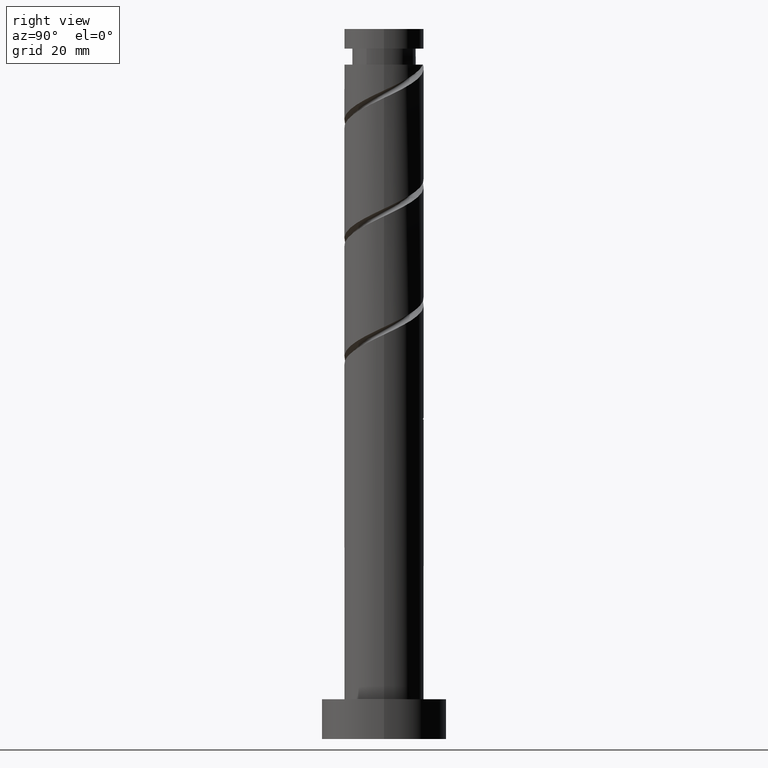
[diagram: clean part render]
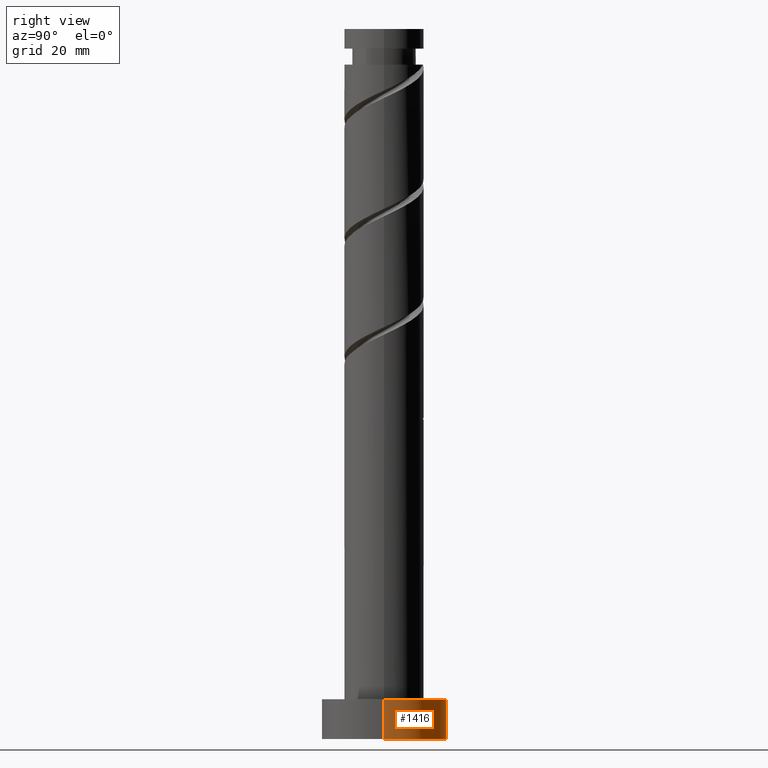
[diagram: same view with one face highlighted and labeled with its STEP entity id]
A machine part, right view. The second image highlights one B-rep face of the part: STEP entity #1416.
In plain terms, the highlighted cylindrical surface (partial cylindrical patch) has radius 11 mm, axis along (-0, -0, -1).
Its self-contained STEP definition (entity closure, byte-faithful):
#44 = CARTESIAN_POINT ( 'NONE',  ( -11.00000000000000000, 0.000000000000000000, 0.000000000000000000 ) ) ;
#91 = AXIS2_PLACEMENT_3D ( 'NONE', #410, #1396, #285 ) ;
#98 = CARTESIAN_POINT ( 'NONE',  ( 0.000000000000000000, 0.000000000000000000, 0.000000000000000000 ) ) ;
#112 = LINE ( 'NONE', #468, #119 ) ;
#119 = VECTOR ( 'NONE', #1516, 1000.000000000000000 ) ;
#203 = DIRECTION ( 'NONE',  ( 1.000000000000000000, 0.000000000000000000, 0.000000000000000000 ) ) ;
#229 = EDGE_CURVE ( 'NONE', #1121, #967, #611, .T. ) ;
#285 = DIRECTION ( 'NONE',  ( -1.000000000000000000, 0.000000000000000000, 0.000000000000000000 ) ) ;
#339 = CARTESIAN_POINT ( 'NONE',  ( 0.000000000000000000, 0.000000000000000000, 7.000000000000000000 ) ) ;
#350 = AXIS2_PLACEMENT_3D ( 'NONE', #98, #1436, #203 ) ;
#410 = CARTESIAN_POINT ( 'NONE',  ( 0.000000000000000000, 0.000000000000000000, 7.000000000000000000 ) ) ;
#468 = CARTESIAN_POINT ( 'NONE',  ( -11.00000000000000000, 0.000000000000000000, 7.000000000000000000 ) ) ;
#510 = VERTEX_POINT ( 'NONE', #44 ) ;
#542 = FACE_OUTER_BOUND ( 'NONE', #1369, .T. ) ;
#561 = EDGE_CURVE ( 'NONE', #1361, #510, #1564, .T. ) ;
#564 = AXIS2_PLACEMENT_3D ( 'NONE', #339, #595, #821 ) ;
#595 = DIRECTION ( 'NONE',  ( 0.000000000000000000, 0.000000000000000000, 1.000000000000000000 ) ) ;
#611 = CIRCLE ( 'NONE', #564, 11.00000000000000000 ) ;
#629 = LINE ( 'NONE', #1573, #1237 ) ;
#719 = EDGE_CURVE ( 'NONE', #1121, #1361, #629, .T. ) ;
#821 = DIRECTION ( 'NONE',  ( 1.000000000000000000, 0.000000000000000000, 0.000000000000000000 ) ) ;
#835 = CARTESIAN_POINT ( 'NONE',  ( -11.00000000000000000, 0.000000000000000000, 7.000000000000000000 ) ) ;
#853 = ORIENTED_EDGE ( 'NONE', *, *, #561, .T. ) ;
#875 = ORIENTED_EDGE ( 'NONE', *, *, #719, .T. ) ;
#953 = ORIENTED_EDGE ( 'NONE', *, *, #1047, .F. ) ;
#967 = VERTEX_POINT ( 'NONE', #835 ) ;
#974 = DIRECTION ( 'NONE',  ( -0.000000000000000000, -0.000000000000000000, -1.000000000000000000 ) ) ;
#988 = CARTESIAN_POINT ( 'NONE',  ( 11.00000000000000000, 1.347111479062088405E-15, 0.000000000000000000 ) ) ;
#1047 = EDGE_CURVE ( 'NONE', #967, #510, #112, .T. ) ;
#1121 = VERTEX_POINT ( 'NONE', #1538 ) ;
#1237 = VECTOR ( 'NONE', #974, 1000.000000000000000 ) ;
#1361 = VERTEX_POINT ( 'NONE', #988 ) ;
#1369 = EDGE_LOOP ( 'NONE', ( #1450, #875, #853, #953 ) ) ;
#1375 = CYLINDRICAL_SURFACE ( 'NONE', #91, 11.00000000000000000 ) ;
#1396 = DIRECTION ( 'NONE',  ( -0.000000000000000000, -0.000000000000000000, -1.000000000000000000 ) ) ;
#1416 = ADVANCED_FACE ( 'NONE', ( #542 ), #1375, .T. ) ;
#1436 = DIRECTION ( 'NONE',  ( 0.000000000000000000, 0.000000000000000000, 1.000000000000000000 ) ) ;
#1450 = ORIENTED_EDGE ( 'NONE', *, *, #229, .F. ) ;
#1516 = DIRECTION ( 'NONE',  ( -0.000000000000000000, -0.000000000000000000, -1.000000000000000000 ) ) ;
#1538 = CARTESIAN_POINT ( 'NONE',  ( 11.00000000000000000, 1.347111479062088405E-15, 7.000000000000000000 ) ) ;
#1564 = CIRCLE ( 'NONE', #350, 11.00000000000000000 ) ;
#1573 = CARTESIAN_POINT ( 'NONE',  ( 11.00000000000000000, 1.347111479062088405E-15, 7.000000000000000000 ) ) ;